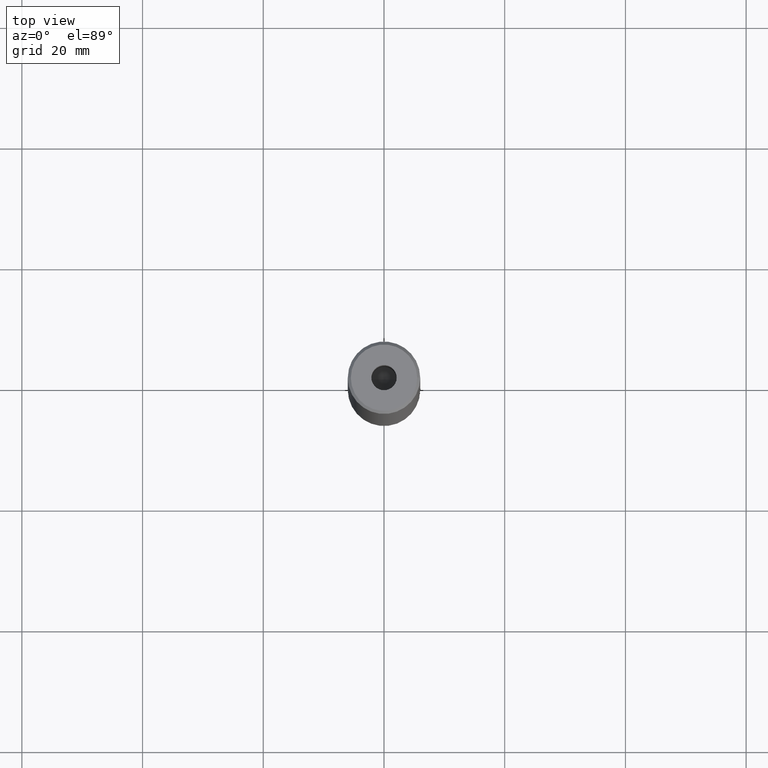
[diagram: clean part render]
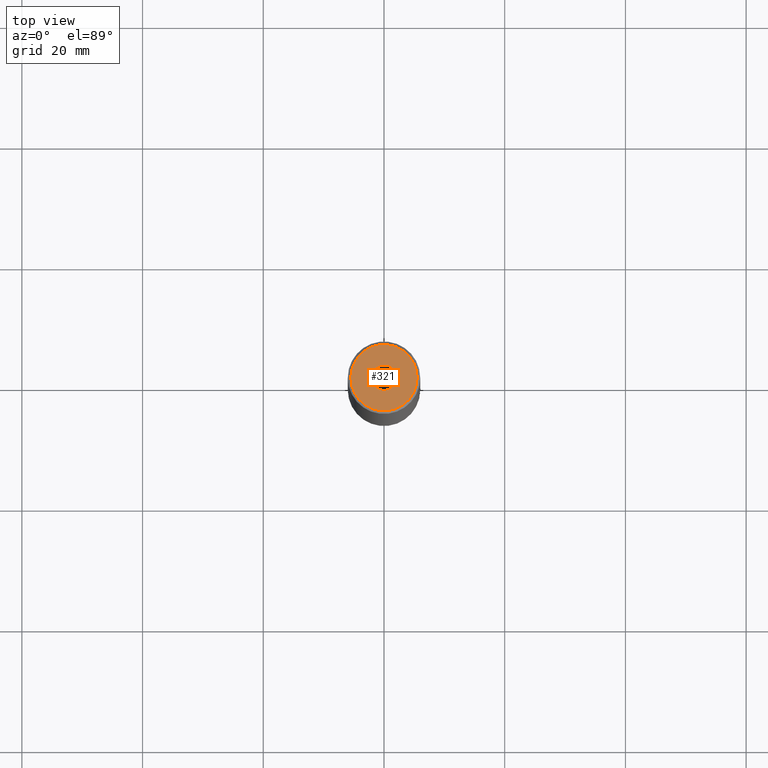
[diagram: same view with one face highlighted and labeled with its STEP entity id]
A machine part, top view. The second image highlights one B-rep face of the part: STEP entity #321.
In plain terms, the highlighted planar face has unit normal (0, -0, 1).
Its self-contained STEP definition (entity closure, byte-faithful):
#9 = DIRECTION ( 'NONE',  ( 0.000000000000000000, -0.000000000000000000, 1.000000000000000000 ) ) ;
#23 = DIRECTION ( 'NONE',  ( 1.000000000000000000, 0.000000000000000000, 0.000000000000000000 ) ) ;
#24 = AXIS2_PLACEMENT_3D ( 'NONE', #75, #259, #215 ) ;
#28 = VERTEX_POINT ( 'NONE', #135 ) ;
#44 = DIRECTION ( 'NONE',  ( -0.000000000000000000, -0.000000000000000000, 1.000000000000000000 ) ) ;
#56 = EDGE_LOOP ( 'NONE', ( #58, #460 ) ) ;
#58 = ORIENTED_EDGE ( 'NONE', *, *, #93, .T. ) ;
#75 = CARTESIAN_POINT ( 'NONE',  ( 0.000000000000000000, 0.000000000000000000, -1.990051048614449116E-16 ) ) ;
#93 = EDGE_CURVE ( 'NONE', #557, #312, #550, .T. ) ;
#135 = CARTESIAN_POINT ( 'NONE',  ( -2.099999999999998757, 2.571758278209439985E-16, -1.990051048614449116E-16 ) ) ;
#142 = FACE_BOUND ( 'NONE', #286, .T. ) ;
#145 = DIRECTION ( 'NONE',  ( -0.000000000000000000, -0.000000000000000000, 1.000000000000000000 ) ) ;
#147 = ORIENTED_EDGE ( 'NONE', *, *, #504, .F. ) ;
#154 = ORIENTED_EDGE ( 'NONE', *, *, #266, .F. ) ;
#160 = CARTESIAN_POINT ( 'NONE',  ( 2.099999999999998757, 0.000000000000000000, -1.990051048614449116E-16 ) ) ;
#209 = CARTESIAN_POINT ( 'NONE',  ( -5.500000000000031974, 0.000000000000000000, 0.000000000000000000 ) ) ;
#210 = CARTESIAN_POINT ( 'NONE',  ( 0.000000000000000000, 0.000000000000000000, 0.000000000000000000 ) ) ;
#215 = DIRECTION ( 'NONE',  ( 1.000000000000000000, 0.000000000000000000, 0.000000000000000000 ) ) ;
#232 = CARTESIAN_POINT ( 'NONE',  ( 0.000000000000000000, 0.000000000000000000, 0.000000000000000000 ) ) ;
#233 = VERTEX_POINT ( 'NONE', #160 ) ;
#236 = AXIS2_PLACEMENT_3D ( 'NONE', #232, #9, #522 ) ;
#259 = DIRECTION ( 'NONE',  ( -0.000000000000000000, -0.000000000000000000, 1.000000000000000000 ) ) ;
#266 = EDGE_CURVE ( 'NONE', #233, #28, #313, .T. ) ;
#278 = PLANE ( 'NONE',  #236 ) ;
#282 = CARTESIAN_POINT ( 'NONE',  ( 5.500000000000031974, 7.041719095097299615E-16, 0.000000000000000000 ) ) ;
#286 = EDGE_LOOP ( 'NONE', ( #154, #147 ) ) ;
#312 = VERTEX_POINT ( 'NONE', #282 ) ;
#313 = CIRCLE ( 'NONE', #24, 2.099999999999998757 ) ;
#321 = ADVANCED_FACE ( 'NONE', ( #142, #417 ), #278, .T. ) ;
#365 = AXIS2_PLACEMENT_3D ( 'NONE', #210, #431, #23 ) ;
#366 = CIRCLE ( 'NONE', #502, 2.099999999999998757 ) ;
#383 = EDGE_CURVE ( 'NONE', #312, #557, #511, .T. ) ;
#391 = DIRECTION ( 'NONE',  ( 1.000000000000000000, 0.000000000000000000, 0.000000000000000000 ) ) ;
#404 = AXIS2_PLACEMENT_3D ( 'NONE', #555, #145, #391 ) ;
#417 = FACE_OUTER_BOUND ( 'NONE', #56, .T. ) ;
#431 = DIRECTION ( 'NONE',  ( -0.000000000000000000, -0.000000000000000000, 1.000000000000000000 ) ) ;
#460 = ORIENTED_EDGE ( 'NONE', *, *, #383, .T. ) ;
#496 = DIRECTION ( 'NONE',  ( 1.000000000000000000, 0.000000000000000000, 0.000000000000000000 ) ) ;
#502 = AXIS2_PLACEMENT_3D ( 'NONE', #537, #44, #496 ) ;
#504 = EDGE_CURVE ( 'NONE', #28, #233, #366, .T. ) ;
#511 = CIRCLE ( 'NONE', #365, 5.500000000000031974 ) ;
#522 = DIRECTION ( 'NONE',  ( 1.000000000000000000, 0.000000000000000000, 0.000000000000000000 ) ) ;
#537 = CARTESIAN_POINT ( 'NONE',  ( 0.000000000000000000, 0.000000000000000000, -1.990051048614449116E-16 ) ) ;
#550 = CIRCLE ( 'NONE', #404, 5.500000000000031974 ) ;
#555 = CARTESIAN_POINT ( 'NONE',  ( 0.000000000000000000, 0.000000000000000000, 0.000000000000000000 ) ) ;
#557 = VERTEX_POINT ( 'NONE', #209 ) ;